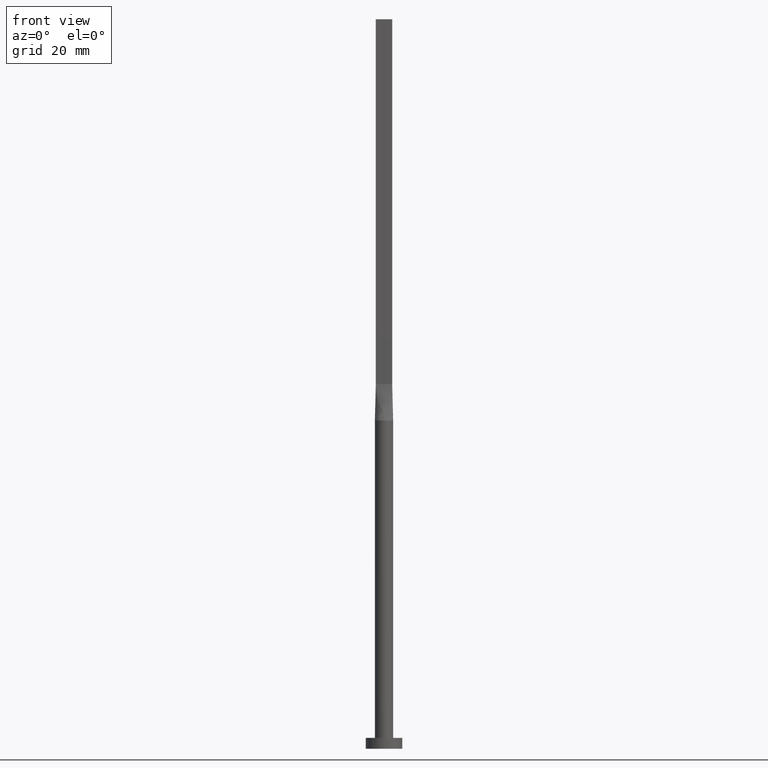
[diagram: clean part render]
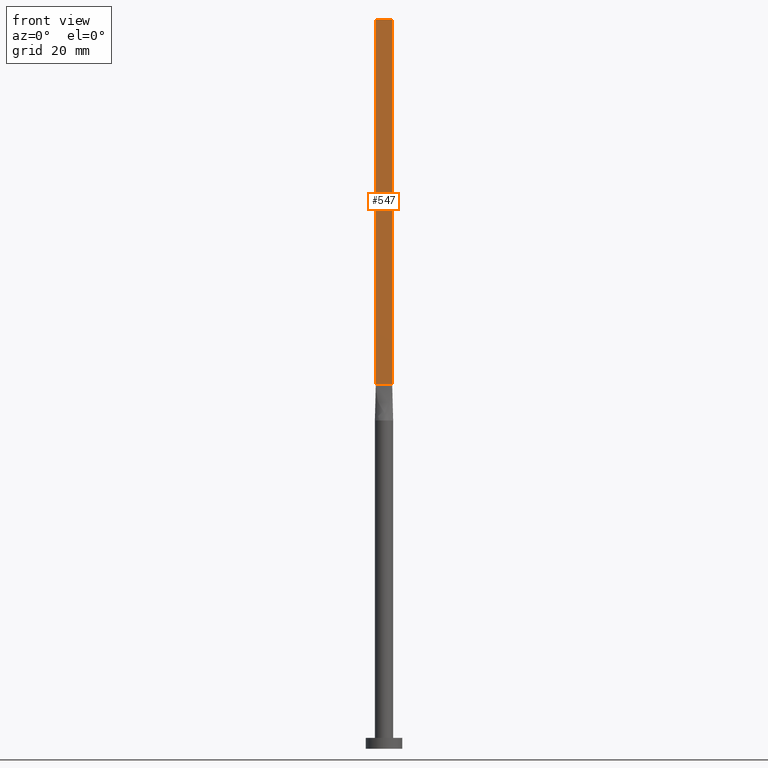
[diagram: same view with one face highlighted and labeled with its STEP entity id]
A machine part, front view. The second image highlights one B-rep face of the part: STEP entity #547.
In plain terms, the highlighted planar face has unit normal (0, 1, -0).
Its self-contained STEP definition (entity closure, byte-faithful):
#6 = VECTOR ( 'NONE', #472, 1000.000000000000000 ) ;
#10 = DIRECTION ( 'NONE',  ( 7.228014483236697048E-17, 1.000000000000000000, -0.000000000000000000 ) ) ;
#80 = EDGE_LOOP ( 'NONE', ( #379, #142, #84, #198 ) ) ;
#84 = ORIENTED_EDGE ( 'NONE', *, *, #196, .F. ) ;
#111 = CARTESIAN_POINT ( 'NONE',  ( -2.250000000000000000, -0.4999999999999994449, 99.99999999999998579 ) ) ;
#118 = CARTESIAN_POINT ( 'NONE',  ( -2.250000000000000000, -0.4999999999999994449, 200.0000000000000000 ) ) ;
#126 = EDGE_CURVE ( 'NONE', #377, #453, #137, .T. ) ;
#137 = LINE ( 'NONE', #403, #345 ) ;
#138 = VECTOR ( 'NONE', #408, 1000.000000000000000 ) ;
#142 = ORIENTED_EDGE ( 'NONE', *, *, #187, .F. ) ;
#185 = LINE ( 'NONE', #230, #138 ) ;
#187 = EDGE_CURVE ( 'NONE', #261, #544, #185, .T. ) ;
#196 = EDGE_CURVE ( 'NONE', #377, #261, #579, .T. ) ;
#198 = ORIENTED_EDGE ( 'NONE', *, *, #126, .T. ) ;
#222 = DIRECTION ( 'NONE',  ( -0.000000000000000000, -0.000000000000000000, -1.000000000000000000 ) ) ;
#230 = CARTESIAN_POINT ( 'NONE',  ( 2.250000000000000000, -0.4999999999999997780, 200.0000000000000000 ) ) ;
#241 = FACE_OUTER_BOUND ( 'NONE', #80, .T. ) ;
#258 = LINE ( 'NONE', #467, #6 ) ;
#261 = VERTEX_POINT ( 'NONE', #563 ) ;
#267 = EDGE_CURVE ( 'NONE', #453, #544, #258, .T. ) ;
#299 = CARTESIAN_POINT ( 'NONE',  ( -2.250000000000000000, -0.4999999999999994449, 200.0000000000000000 ) ) ;
#314 = AXIS2_PLACEMENT_3D ( 'NONE', #118, #10, #458 ) ;
#345 = VECTOR ( 'NONE', #222, 1000.000000000000000 ) ;
#352 = VECTOR ( 'NONE', #487, 1000.000000000000000 ) ;
#377 = VERTEX_POINT ( 'NONE', #299 ) ;
#379 = ORIENTED_EDGE ( 'NONE', *, *, #267, .T. ) ;
#403 = CARTESIAN_POINT ( 'NONE',  ( -2.250000000000000000, -0.4999999999999994449, 200.0000000000000000 ) ) ;
#408 = DIRECTION ( 'NONE',  ( -0.000000000000000000, -0.000000000000000000, -1.000000000000000000 ) ) ;
#453 = VERTEX_POINT ( 'NONE', #111 ) ;
#458 = DIRECTION ( 'NONE',  ( -1.000000000000000000, 7.228014483236697048E-17, 0.000000000000000000 ) ) ;
#467 = CARTESIAN_POINT ( 'NONE',  ( -2.250000000000000000, -0.4999999999999994449, 99.99999999999998579 ) ) ;
#472 = DIRECTION ( 'NONE',  ( 1.000000000000000000, -7.228014483236697048E-17, 0.000000000000000000 ) ) ;
#487 = DIRECTION ( 'NONE',  ( 1.000000000000000000, -7.228014483236697048E-17, 0.000000000000000000 ) ) ;
#496 = PLANE ( 'NONE',  #314 ) ;
#537 = CARTESIAN_POINT ( 'NONE',  ( -2.250000000000000000, -0.4999999999999994449, 200.0000000000000000 ) ) ;
#544 = VERTEX_POINT ( 'NONE', #555 ) ;
#547 = ADVANCED_FACE ( 'NONE', ( #241 ), #496, .F. ) ;
#555 = CARTESIAN_POINT ( 'NONE',  ( 2.250000000000000000, -0.4999999999999997780, 99.99999999999998579 ) ) ;
#563 = CARTESIAN_POINT ( 'NONE',  ( 2.250000000000000000, -0.4999999999999997780, 200.0000000000000000 ) ) ;
#579 = LINE ( 'NONE', #537, #352 ) ;